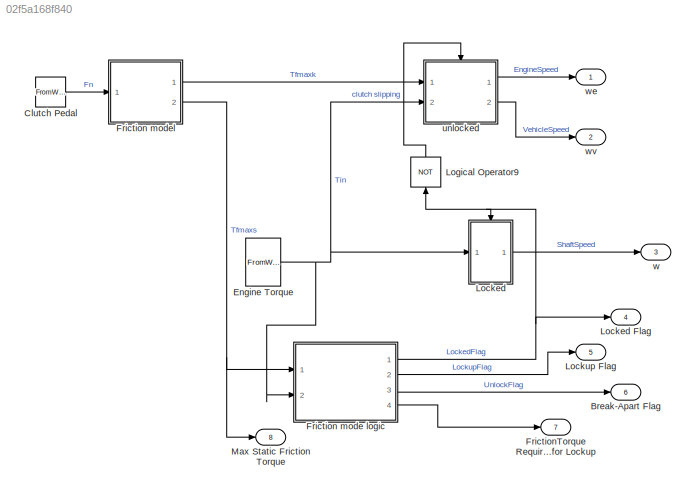
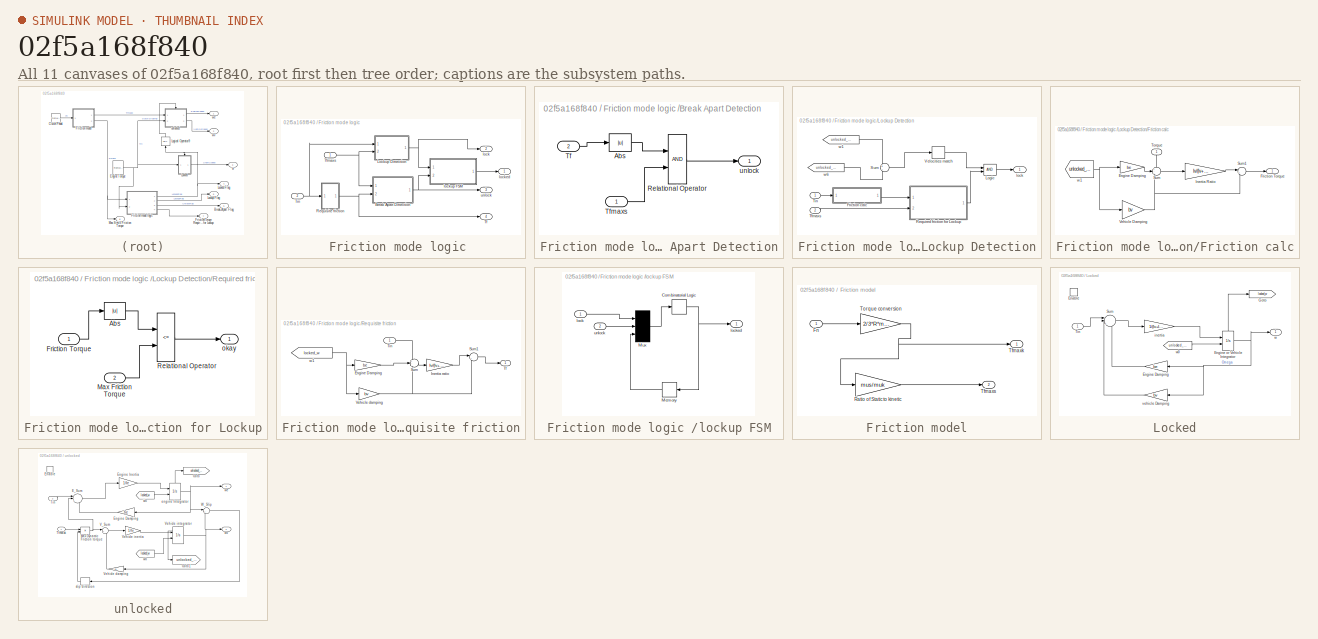
[diagram: thumbnail index - all 11 canvases of the model, root first then tree order]
MODEL slx_02f5a168f840
KIND model
CONFIG AbsTol = auto
CONFIG EnableMultiTasking = off
CONFIG FixedStep = auto
CONFIG MaxStep = auto
CONFIG MinStep = auto
CONFIG RelTol = 1e-3
CONFIG SampleTimeConstraint = Unconstrained
CONFIG Solver = VariableStepAuto
CONFIG SolverName = VariableStepAuto
CONFIG StartTime = 0.0
CONFIG StopTime = 10.0
BLOCK [Outport] Break-Apart Flag
  InitialOutput = 0
  Port = 6
  VectorParamsAs1DForOutWhenUnconnected = off
BLOCK [FromWorkspace] Clutch Pedal
  VariableName = Fn
  ZeroCross = off
BLOCK [FromWorkspace] Engine Torque
  VariableName = Tin
  ZeroCross = off
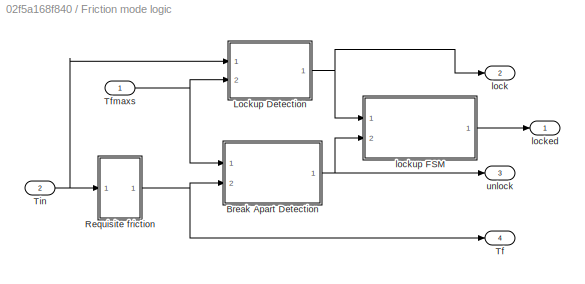
BLOCK [SubSystem] Friction mode logic 
  Ports = [2, 4]
  RequestExecContextInheritance = off
BLOCK [SubSystem] Friction mode logic /Break Apart Detection
  Ports = [2, 1]
  RequestExecContextInheritance = off
BLOCK [Abs] Friction mode logic /Break Apart Detection/Abs
BLOCK [RelationalOperator] Friction mode logic /Break Apart Detection/Relational Operator
  OutDataTypeStr = boolean
  Ports = [2, 1]
BLOCK [Inport] Friction mode logic /Break Apart Detection/Tf
  Port = 2
BLOCK [Inport] Friction mode logic /Break Apart Detection/Tfmaxs
BLOCK [Outport] Friction mode logic /Break Apart Detection/unlock
  InitialOutput = 0
  VectorParamsAs1DForOutWhenUnconnected = off
BLOCK [SubSystem] Friction mode logic /Lockup Detection
  Ports = [2, 1]
  RequestExecContextInheritance = off
BLOCK [SubSystem] Friction mode logic /Lockup Detection/Friction calc
  Ports = [1, 1]
  RequestExecContextInheritance = off
BLOCK [Gain] Friction mode logic /Lockup Detection/Friction calc/Engine Damping
  Gain = be
  NameLocation = top
  OutDataTypeStr = Inherit: Same as input
  ParamDataTypeStr = Inherit: Same as input
  SaturateOnIntegerOverflow = on
BLOCK [Outport] Friction mode logic /Lockup Detection/Friction calc/Friction Torque
  InitialOutput = 0
  VectorParamsAs1DForOutWhenUnconnected = off
BLOCK [Gain] Friction mode logic /Lockup Detection/Friction calc/Inertia Ratio
  Gain = Iv/(Iv+Ie)
  OutDataTypeStr = Inherit: Same as input
  ParamDataTypeStr = Inherit: Same as input
  SaturateOnIntegerOverflow = on
BLOCK [Sum] Friction mode logic /Lockup Detection/Friction calc/Sum
  InputSameDT = on
  Inputs = +--
  OutDataTypeStr = Inherit: Same as first input
  Ports = [3, 1]
  SaturateOnIntegerOverflow = on
BLOCK [Sum] Friction mode logic /Lockup Detection/Friction calc/Sum1
  InputSameDT = on
  Inputs = |++
  OutDataTypeStr = Inherit: Same as first input
  Ports = [2, 1]
  SaturateOnIntegerOverflow = on
BLOCK [Inport] Friction mode logic /Lockup Detection/Friction calc/Torque
  NameLocation = left
BLOCK [Gain] Friction mode logic /Lockup Detection/Friction calc/Vehicle Damping
  Gain = bv
  OutDataTypeStr = Inherit: Same as input
  ParamDataTypeStr = Inherit: Same as input
  SaturateOnIntegerOverflow = on
BLOCK [From] Friction mode logic /Lockup Detection/Friction calc/w1
  GotoTag = unlocked_we
  TagVisibility = global
BLOCK [Logic] Friction mode logic /Lockup Detection/Logic
  AttributesFormatString = (%<Operator>)
  IconShape = distinctive
  OutDataTypeStr = boolean
  Ports = [2, 1]
BLOCK [SubSystem] Friction mode logic /Lockup Detection/Required friction for Lockup
  Ports = [2, 1]
  RequestExecContextInheritance = off
BLOCK [Abs] Friction mode logic /Lockup Detection/Required friction for Lockup/Abs
BLOCK [Inport] Friction mode logic /Lockup Detection/Required friction for Lockup/Friction Torque
BLOCK [Inport] Friction mode logic /Lockup Detection/Required friction for Lockup/Max Friction Torque
  Port = 2
BLOCK [RelationalOperator] Friction mode logic /Lockup Detection/Required friction for Lockup/Relational Operator
  Operator = <=
  OutDataTypeStr = boolean
  Ports = [2, 1]
BLOCK [Outport] Friction mode logic /Lockup Detection/Required friction for Lockup/okay
  InitialOutput = 0
  VectorParamsAs1DForOutWhenUnconnected = off
BLOCK [Sum] Friction mode logic /Lockup Detection/Sum
  InputSameDT = on
  Inputs = +-
  OutDataTypeStr = Inherit: Same as first input
  Ports = [2, 1]
  SaturateOnIntegerOverflow = on
BLOCK [Inport] Friction mode logic /Lockup Detection/Tfmaxs
  Port = 2
BLOCK [Inport] Friction mode logic /Lockup Detection/Tin
BLOCK [HitCross] Friction mode logic /Lockup Detection/Velocities match
  Ports = [1, 1]
BLOCK [Outport] Friction mode logic /Lockup Detection/lock
  InitialOutput = 0
  VectorParamsAs1DForOutWhenUnconnected = off
BLOCK [From] Friction mode logic /Lockup Detection/w1
  GotoTag = unlocked_we
  TagVisibility = global
BLOCK [From] Friction mode logic /Lockup Detection/w6
  GotoTag = unlocked_wv
  TagVisibility = global
BLOCK [SubSystem] Friction mode logic /Requisite friction
  Ports = [1, 1]
  RequestExecContextInheritance = off
BLOCK [Gain] Friction mode logic /Requisite friction/Engine Damping
  Gain = be
  NameLocation = top
  OutDataTypeStr = Inherit: Same as input
  ParamDataTypeStr = Inherit: Same as input
  SaturateOnIntegerOverflow = on
BLOCK [Gain] Friction mode logic /Requisite friction/Inertia ratio
  Gain = Iv/(Iv+Ie)
  OutDataTypeStr = Inherit: Same as input
  ParamDataTypeStr = Inherit: Same as input
  SaturateOnIntegerOverflow = on
BLOCK [Sum] Friction mode logic /Requisite friction/Sum
  InputSameDT = on
  Inputs = +--
  OutDataTypeStr = Inherit: Same as first input
  Ports = [3, 1]
  SaturateOnIntegerOverflow = on
BLOCK [Sum] Friction mode logic /Requisite friction/Sum1
  InputSameDT = on
  Inputs = |++
  OutDataTypeStr = Inherit: Same as first input
  Ports = [2, 1]
  SaturateOnIntegerOverflow = on
BLOCK [Outport] Friction mode logic /Requisite friction/Tf
  InitialOutput = 0
  VectorParamsAs1DForOutWhenUnconnected = off
BLOCK [Inport] Friction mode logic /Requisite friction/Tin
BLOCK [Gain] Friction mode logic /Requisite friction/Vehicle damping
  Gain = bv
  OutDataTypeStr = Inherit: Same as input
  ParamDataTypeStr = Inherit: Same as input
  SaturateOnIntegerOverflow = on
BLOCK [From] Friction mode logic /Requisite friction/w1
  GotoTag = locked_w
  NameLocation = top
  TagVisibility = global
BLOCK [Outport] Friction mode logic /Tf
  InitialOutput = 0
  Port = 4
  VectorParamsAs1DForOutWhenUnconnected = off
BLOCK [Inport] Friction mode logic /Tfmaxs
BLOCK [Inport] Friction mode logic /Tin
  Port = 2
BLOCK [Outport] Friction mode logic /lock
  InitialOutput = 0
  Port = 2
  VectorParamsAs1DForOutWhenUnconnected = off
BLOCK [Outport] Friction mode logic /locked
  InitialOutput = 0
  VectorParamsAs1DForOutWhenUnconnected = off
BLOCK [SubSystem] Friction mode logic /lockup FSM
  Ports = [2, 1]
  RequestExecContextInheritance = off
BLOCK [CombinatorialLogic] Friction mode logic /lockup FSM/Combinatorial Logic
  TruthTable = [0;1;0;0;1;1;1;0]
BLOCK [Memory] Friction mode logic /lockup FSM/Memory
BLOCK [Mux] Friction mode logic /lockup FSM/Mux
  Inputs = 3
  Ports = [3, 1]
BLOCK [Inport] Friction mode logic /lockup FSM/lock
  NameLocation = top
BLOCK [Outport] Friction mode logic /lockup FSM/locked
  InitialOutput = 0
  VectorParamsAs1DForOutWhenUnconnected = off
BLOCK [Inport] Friction mode logic /lockup FSM/unlock
  Port = 2
BLOCK [Outport] Friction mode logic /unlock
  InitialOutput = 0
  Port = 3
  VectorParamsAs1DForOutWhenUnconnected = off
BLOCK [SubSystem] Friction model
  Ports = [1, 2]
  RequestExecContextInheritance = off
BLOCK [Inport] Friction model/Fn
BLOCK [Gain] Friction model/Ratio of Static to kinetic
  Gain = mus/muk
  OutDataTypeStr = Inherit: Same as input
  ParamDataTypeStr = Inherit: Same as input
  SaturateOnIntegerOverflow = on
BLOCK [Outport] Friction model/Tfmaxk
  InitialOutput = 0
  VectorParamsAs1DForOutWhenUnconnected = off
BLOCK [Outport] Friction model/Tfmaxs
  InitialOutput = 0
  Port = 2
  VectorParamsAs1DForOutWhenUnconnected = off
BLOCK [Gain] Friction model/Torque conversion
  Gain = 2/3*R*muk
  OutDataTypeStr = Inherit: Same as input
  ParamDataTypeStr = Inherit: Same as input
  SaturateOnIntegerOverflow = on
BLOCK [Outport] FrictionTorque Required for Lockup
  InitialOutput = 0
  Port = 7
  VectorParamsAs1DForOutWhenUnconnected = off
BLOCK [SubSystem] Locked
  Ports = [1, 1, 1]
  RequestExecContextInheritance = off
BLOCK [Outport] Locked Flag
  InitialOutput = 0
  Port = 4
  VectorParamsAs1DForOutWhenUnconnected = off
BLOCK [EnablePort] Locked/Enable
  Ports = []
  StatesWhenEnabling = reset
BLOCK [Gain] Locked/Engine Damping
  Gain = be
  OutDataTypeStr = Inherit: Same as input
  ParamDataTypeStr = Inherit: Same as input
  SaturateOnIntegerOverflow = on
BLOCK [Integrator] Locked/Engine or Vehicle Integrator
  InitialConditionSource = external
  Ports = [2, 1, 0, 0, 1]
  ShowStatePort = on
BLOCK [Goto] Locked/Goto
  GotoTag = locked_w
  NameLocation = top
  TagVisibility = global
BLOCK [Sum] Locked/Sum
  InputSameDT = on
  Inputs = ||+--
  OutDataTypeStr = Inherit: Same as first input
  Ports = [3, 1]
  SaturateOnIntegerOverflow = on
BLOCK [Inport] Locked/Tin
BLOCK [Gain] Locked/inertia
  Gain = 1/(Iv+Ie)
  OutDataTypeStr = Inherit: Same as input
  ParamDataTypeStr = Inherit: Same as input
  SaturateOnIntegerOverflow = on
BLOCK [Gain] Locked/vehicle Damping
  Gain = bv
  OutDataTypeStr = Inherit: Same as input
  ParamDataTypeStr = Inherit: Same as input
  SaturateOnIntegerOverflow = on
BLOCK [Outport] Locked/w
  InitialOutput = 0
  VectorParamsAs1DForOutWhenUnconnected = off
BLOCK [From] Locked/w0
  GotoTag = unlocked_we
  TagVisibility = global
BLOCK [Outport] Lockup Flag
  InitialOutput = 0
  Port = 5
  VectorParamsAs1DForOutWhenUnconnected = off
BLOCK [Logic] Logical Operator9
  IconShape = distinctive
  Inputs = 1
  NameLocation = left
  Operator = NOT
  OutDataTypeStr = boolean
  Ports = [1, 1]
BLOCK [Outport] Max Static Friction Torque
  InitialOutput = 0
  Port = 8
  VectorParamsAs1DForOutWhenUnconnected = off
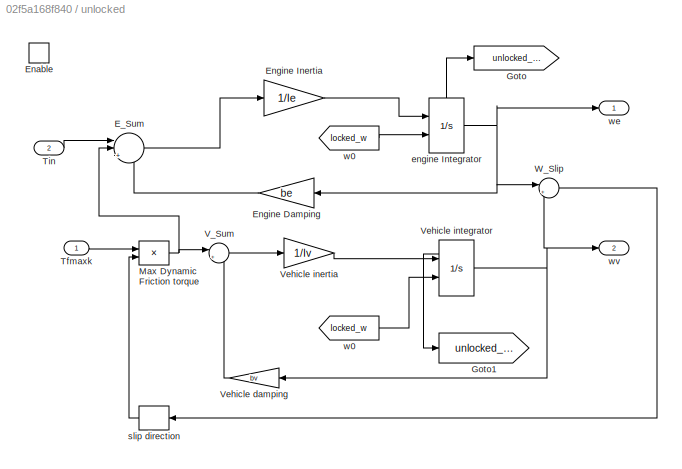
BLOCK [SubSystem] unlocked
  Ports = [2, 2, 1]
  RequestExecContextInheritance = off
BLOCK [Sum] unlocked/E_Sum
  InputSameDT = on
  Inputs = ||+--
  NameLocation = top
  OutDataTypeStr = Inherit: Same as first input
  Ports = [3, 1]
  SaturateOnIntegerOverflow = on
BLOCK [EnablePort] unlocked/Enable
  Ports = []
  StatesWhenEnabling = reset
BLOCK [Gain] unlocked/Engine Damping
  Gain = be
  OutDataTypeStr = Inherit: Same as input
  ParamDataTypeStr = Inherit: Same as input
  SaturateOnIntegerOverflow = on
BLOCK [Gain] unlocked/Engine Inertia
  Gain = 1/Ie
  OutDataTypeStr = Inherit: Same as input
  ParamDataTypeStr = Inherit: Same as input
  SaturateOnIntegerOverflow = on
BLOCK [Goto] unlocked/Goto
  GotoTag = unlocked_we
  TagVisibility = global
BLOCK [Goto] unlocked/Goto1
  GotoTag = unlocked_wv
  TagVisibility = global
BLOCK [Product] unlocked/Max Dynamic Friction torque
  InputSameDT = on
  OutDataTypeStr = Inherit: Same as first input
  Ports = [2, 1]
  RndMeth = Zero
  SaturateOnIntegerOverflow = on
BLOCK [Inport] unlocked/Tfmaxk
BLOCK [Inport] unlocked/Tin
  Port = 2
BLOCK [Sum] unlocked/V_Sum
  InputSameDT = on
  Inputs = |+-
  NameLocation = top
  OutDataTypeStr = Inherit: Same as first input
  Ports = [2, 1]
  SaturateOnIntegerOverflow = on
BLOCK [Gain] unlocked/Vehicle damping
  Gain = bv
  OutDataTypeStr = Inherit: Same as input
  ParamDataTypeStr = Inherit: Same as input
  SaturateOnIntegerOverflow = on
BLOCK [Gain] unlocked/Vehicle inertia
  Gain = 1/Iv
  OutDataTypeStr = Inherit: Same as input
  ParamDataTypeStr = Inherit: Same as input
  SaturateOnIntegerOverflow = on
BLOCK [Integrator] unlocked/Vehicle integrator
  InitialConditionSource = external
  NameLocation = top
  Ports = [2, 1, 0, 0, 1]
  ShowStatePort = on
BLOCK [Sum] unlocked/W_Slip
  InputSameDT = on
  Inputs = |+-
  NameLocation = top
  OutDataTypeStr = Inherit: Same as first input
  Ports = [2, 1]
  SaturateOnIntegerOverflow = on
BLOCK [Integrator] unlocked/engine Integrator
  InitialConditionSource = external
  Ports = [2, 1, 0, 0, 1]
  ShowStatePort = on
BLOCK [Signum] unlocked/slip direction
BLOCK [From] unlocked/w0
  GotoTag = locked_w
  TagVisibility = global
BLOCK [From] unlocked/w0 
  GotoTag = locked_w
  TagVisibility = global
BLOCK [Outport] unlocked/we
  InitialOutput = 0
  VectorParamsAs1DForOutWhenUnconnected = off
BLOCK [Outport] unlocked/wv
  InitialOutput = 0
  Port = 2
  VectorParamsAs1DForOutWhenUnconnected = off
BLOCK [Outport] w
  InitialOutput = 0
  Port = 3
  VectorParamsAs1DForOutWhenUnconnected = off
BLOCK [Outport] we
  InitialOutput = 0
  VectorParamsAs1DForOutWhenUnconnected = off
BLOCK [Outport] wv
  InitialOutput = 0
  Port = 2
  VectorParamsAs1DForOutWhenUnconnected = off
LINE Clutch Pedal:1 -> Friction model:1
NET Engine Torque:1 -> Friction mode logic :2, Locked:1, unlocked:2
LINE Friction mode logic /Break Apart Detection/Abs:1 -> Friction mode logic /Break Apart Detection/Relational Operator:1
LINE Friction mode logic /Break Apart Detection/Relational Operator:1 -> Friction mode logic /Break Apart Detection/unlock:1
LINE Friction mode logic /Break Apart Detection/Tf:1 -> Friction mode logic /Break Apart Detection/Abs:1
LINE Friction mode logic /Break Apart Detection/Tfmaxs:1 -> Friction mode logic /Break Apart Detection/Relational Operator:2
NET Friction mode logic /Break Apart Detection:1 -> Friction mode logic /lockup FSM:2, Friction mode logic /unlock:1
LINE Friction mode logic /Lockup Detection/Friction calc/Engine Damping:1 -> Friction mode logic /Lockup Detection/Friction calc/Sum:2
LINE Friction mode logic /Lockup Detection/Friction calc/Inertia Ratio:1 -> Friction mode logic /Lockup Detection/Friction calc/Sum1:1
LINE Friction mode logic /Lockup Detection/Friction calc/Sum1:1 -> Friction mode logic /Lockup Detection/Friction calc/Friction Torque:1
LINE Friction mode logic /Lockup Detection/Friction calc/Sum:1 -> Friction mode logic /Lockup Detection/Friction calc/Inertia Ratio:1
LINE Friction mode logic /Lockup Detection/Friction calc/Torque:1 -> Friction mode logic /Lockup Detection/Friction calc/Sum:1
NET Friction mode logic /Lockup Detection/Friction calc/Vehicle Damping:1 -> Friction mode logic /Lockup Detection/Friction calc/Sum1:2, Friction mode logic /Lockup Detection/Friction calc/Sum:3
NET Friction mode logic /Lockup Detection/Friction calc/w1:1 -> Friction mode logic /Lockup Detection/Friction calc/Engine Damping:1, Friction mode logic /Lockup Detection/Friction calc/Vehicle Damping:1
LINE Friction mode logic /Lockup Detection/Friction calc:1 -> Friction mode logic /Lockup Detection/Required friction for Lockup:1
LINE Friction mode logic /Lockup Detection/Logic:1 -> Friction mode logic /Lockup Detection/lock:1
LINE Friction mode logic /Lockup Detection/Required friction for Lockup/Abs:1 -> Friction mode logic /Lockup Detection/Required friction for Lockup/Relational Operator:1
LINE Friction mode logic /Lockup Detection/Required friction for Lockup/Friction Torque:1 -> Friction mode logic /Lockup Detection/Required friction for Lockup/Abs:1
LINE Friction mode logic /Lockup Detection/Required friction for Lockup/Max Friction Torque:1 -> Friction mode logic /Lockup Detection/Required friction for Lockup/Relational Operator:2
LINE Friction mode logic /Lockup Detection/Required friction for Lockup/Relational Operator:1 -> Friction mode logic /Lockup Detection/Required friction for Lockup/okay:1
LINE Friction mode logic /Lockup Detection/Required friction for Lockup:1 -> Friction mode logic /Lockup Detection/Logic:2
LINE Friction mode logic /Lockup Detection/Sum:1 -> Friction mode logic /Lockup Detection/Velocities match:1
LINE Friction mode logic /Lockup Detection/Tfmaxs:1 -> Friction mode logic /Lockup Detection/Required friction for Lockup:2
LINE Friction mode logic /Lockup Detection/Tin:1 -> Friction mode logic /Lockup Detection/Friction calc:1
LINE Friction mode logic /Lockup Detection/Velocities match:1 -> Friction mode logic /Lockup Detection/Logic:1
LINE Friction mode logic /Lockup Detection/w1:1 -> Friction mode logic /Lockup Detection/Sum:1
LINE Friction mode logic /Lockup Detection/w6:1 -> Friction mode logic /Lockup Detection/Sum:2
NET Friction mode logic /Lockup Detection:1 -> Friction mode logic /lock:1, Friction mode logic /lockup FSM:1
LINE Friction mode logic /Requisite friction/Engine Damping:1 -> Friction mode logic /Requisite friction/Sum:2
LINE Friction mode logic /Requisite friction/Inertia ratio:1 -> Friction mode logic /Requisite friction/Sum1:1
LINE Friction mode logic /Requisite friction/Sum1:1 -> Friction mode logic /Requisite friction/Tf:1
LINE Friction mode logic /Requisite friction/Sum:1 -> Friction mode logic /Requisite friction/Inertia ratio:1
LINE Friction mode logic /Requisite friction/Tin:1 -> Friction mode logic /Requisite friction/Sum:1
NET Friction mode logic /Requisite friction/Vehicle damping:1 -> Friction mode logic /Requisite friction/Sum1:2, Friction mode logic /Requisite friction/Sum:3
NET Friction mode logic /Requisite friction/w1:1 -> Friction mode logic /Requisite friction/Engine Damping:1, Friction mode logic /Requisite friction/Vehicle damping:1
NET Friction mode logic /Requisite friction:1 -> Friction mode logic /Break Apart Detection:2, Friction mode logic /Tf:1
NET Friction mode logic /Tfmaxs:1 -> Friction mode logic /Break Apart Detection:1, Friction mode logic /Lockup Detection:2
NET Friction mode logic /Tin:1 -> Friction mode logic /Lockup Detection:1, Friction mode logic /Requisite friction:1
NET Friction mode logic /lockup FSM/Combinatorial Logic:1 -> Friction mode logic /lockup FSM/Memory:1, Friction mode logic /lockup FSM/locked:1
LINE Friction mode logic /lockup FSM/Memory:1 -> Friction mode logic /lockup FSM/Mux:3
LINE Friction mode logic /lockup FSM/Mux:1 -> Friction mode logic /lockup FSM/Combinatorial Logic:1
LINE Friction mode logic /lockup FSM/lock:1 -> Friction mode logic /lockup FSM/Mux:1
LINE Friction mode logic /lockup FSM/unlock:1 -> Friction mode logic /lockup FSM/Mux:2
LINE Friction mode logic /lockup FSM:1 -> Friction mode logic /locked:1
NET Friction mode logic :1 -> Locked Flag:1, Locked:enable, Logical Operator9:1
LINE Friction mode logic :2 -> Lockup Flag:1
LINE Friction mode logic :3 -> Break-Apart Flag:1
LINE Friction mode logic :4 -> FrictionTorque Required for Lockup:1
LINE Friction model/Fn:1 -> Friction model/Torque conversion:1
LINE Friction model/Ratio of Static to kinetic:1 -> Friction model/Tfmaxs:1
NET Friction model/Torque conversion:1 -> Friction model/Ratio of Static to kinetic:1, Friction model/Tfmaxk:1
LINE Friction model:1 -> unlocked:1
NET Friction model:2 -> Friction mode logic :1, Max Static Friction Torque:1
LINE Locked/Engine Damping:1 -> Locked/Sum:3
NET Locked/Engine or Vehicle Integrator:1 -> Locked/Engine Damping:1, Locked/vehicle Damping:1, Locked/w:1
LINE Locked/Engine or Vehicle Integrator:state -> Locked/Goto:1
LINE Locked/Sum:1 -> Locked/inertia:1
LINE Locked/Tin:1 -> Locked/Sum:1
LINE Locked/inertia:1 -> Locked/Engine or Vehicle Integrator:1
LINE Locked/vehicle Damping:1 -> Locked/Sum:2
LINE Locked/w0:1 -> Locked/Engine or Vehicle Integrator:2
LINE Locked:1 -> w:1
LINE Logical Operator9:1 -> unlocked:enable
LINE unlocked/E_Sum:1 -> unlocked/Engine Inertia:1
LINE unlocked/Engine Damping:1 -> unlocked/E_Sum:3
LINE unlocked/Engine Inertia:1 -> unlocked/engine Integrator:1
NET unlocked/Max Dynamic Friction torque:1 -> unlocked/E_Sum:2, unlocked/V_Sum:1
LINE unlocked/Tfmaxk:1 -> unlocked/Max Dynamic Friction torque:1
LINE unlocked/Tin:1 -> unlocked/E_Sum:1
LINE unlocked/V_Sum:1 -> unlocked/Vehicle inertia:1
LINE unlocked/Vehicle damping:1 -> unlocked/V_Sum:2
LINE unlocked/Vehicle inertia:1 -> unlocked/Vehicle integrator:1
NET unlocked/Vehicle integrator:1 -> unlocked/Vehicle damping:1, unlocked/W_Slip:2, unlocked/wv:1
LINE unlocked/Vehicle integrator:state -> unlocked/Goto1:1
LINE unlocked/W_Slip:1 -> unlocked/slip direction:1
NET unlocked/engine Integrator:1 -> unlocked/Engine Damping:1, unlocked/W_Slip:1, unlocked/we:1
LINE unlocked/engine Integrator:state -> unlocked/Goto:1
LINE unlocked/slip direction:1 -> unlocked/Max Dynamic Friction torque:2
LINE unlocked/w0 :1 -> unlocked/engine Integrator:2
LINE unlocked/w0:1 -> unlocked/Vehicle integrator:2
LINE unlocked:1 -> we:1
LINE unlocked:2 -> wv:1
note: NET lines group one-source signal fan-out (src -> all destinations, sorted); 1:1 wires keep LINE
